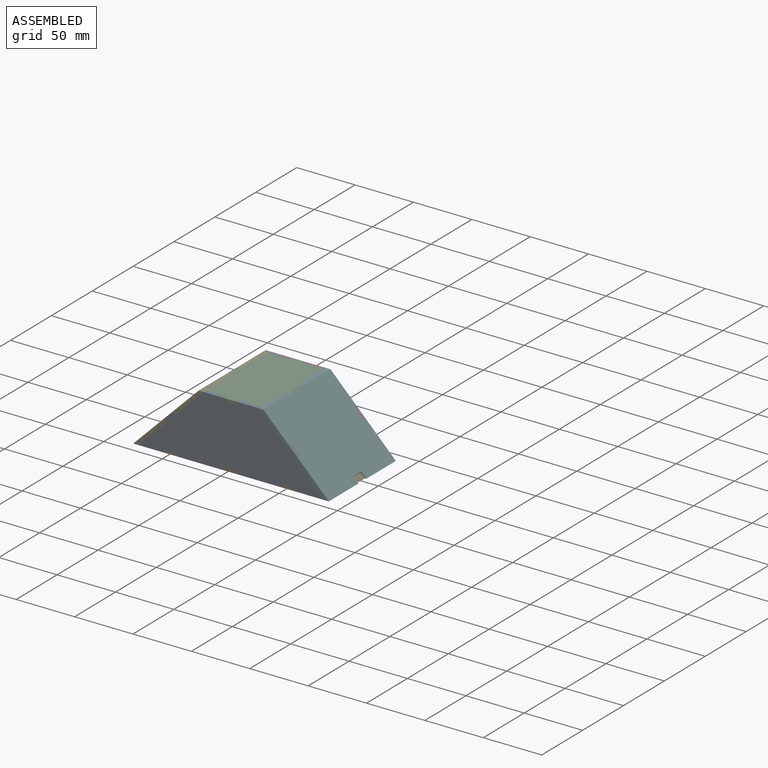
[diagram: assembled view]
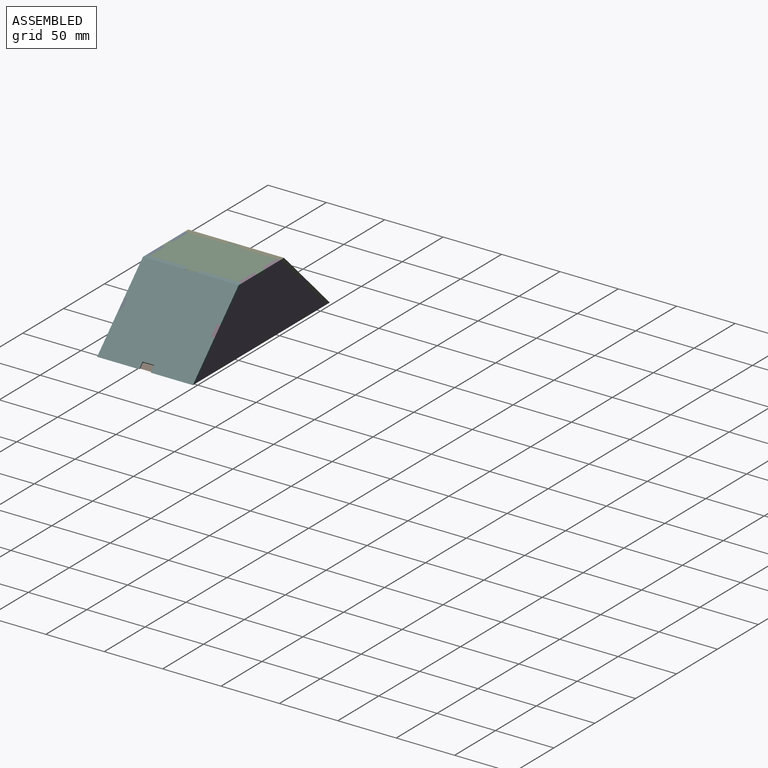
[diagram: assembled view, second angle]
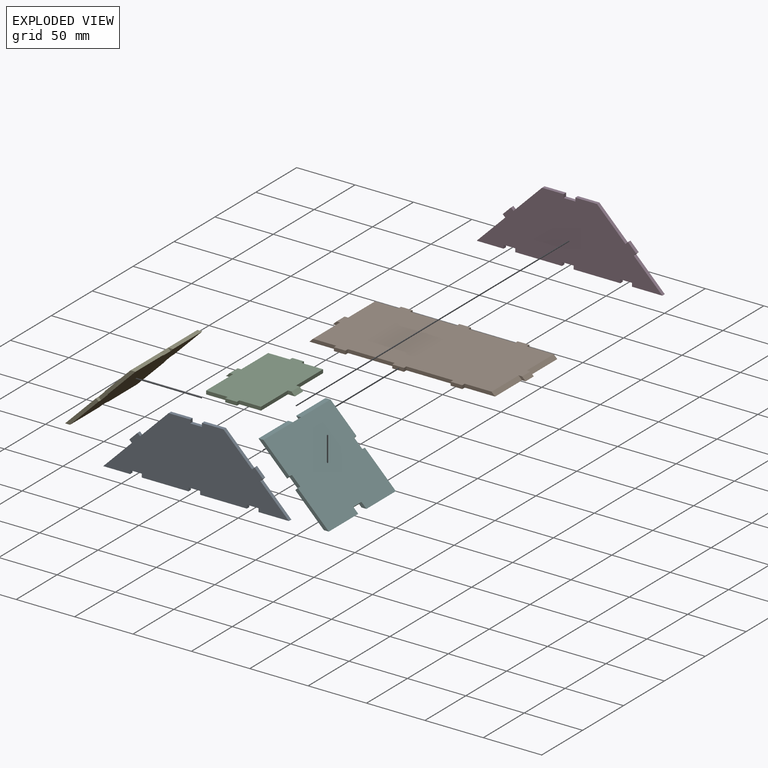
[diagram: exploded view]
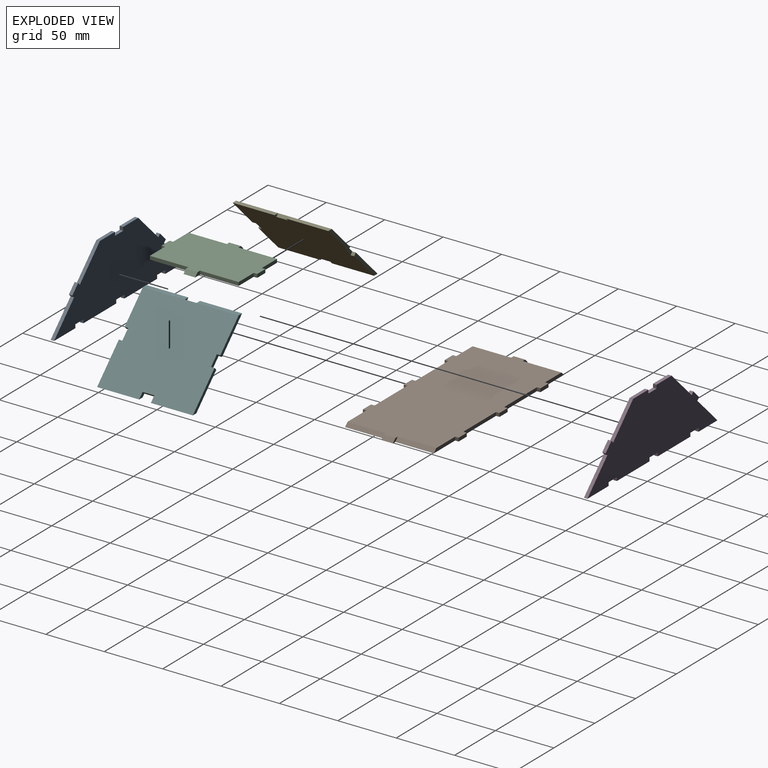
[diagram: exploded view, second angle]
ASSEMBLY  parts=6 mates=5
PART A: 30 faces, bbox 159x3x56 mm
  f0: plane 10x3mm, normal (0,0,-1), area 30mm2, adj f1,f27,f28,f29
  f1: plane 3x3mm, normal (-1,0,0), area 9mm2, adj f0,f2,f28,f29
  f2: plane 26x3mm, normal (0,0,-1), area 78mm2, adj f1,f3,f28,f29
  f3: plane 24.47x24.47mm, normal (0.71,0,0.71), area 103.8mm2, adj f2,f4,f28,f29
  f4: plane 3x2.12mm, normal (0.71,0,-0.71), area 9mm2, adj f3,f5,f28,f29
  f5: plane 7.07x7.07mm, normal (0.71,0,0.71), area 30mm2, adj f4,f6,f28,f29
  f6: plane 3x2.12mm, normal (-0.71,0,0.71), area 9mm2, adj f5,f7,f28,f29
  f7: plane 24.46x24.46mm, normal (0.71,0,0.71), area 103.8mm2, adj f6,f8,f28,f29
  f8: plane 18.5x3mm, normal (0,0,1), area 55.5mm2, adj f7,f9,f28,f29
  f9: plane 3x3mm, normal (-1,0,0), area 9mm2, adj f8,f10,f28,f29
  f10: plane 10x3mm, normal (0,0,1), area 30mm2, adj f9,f11,f28,f29
  f11: plane 3x3mm, normal (1,0,0), area 9mm2, adj f10,f12,f28,f29
  f12: plane 18.5x3mm, normal (0,0,1), area 55.5mm2, adj f11,f13,f28,f29
  f13: plane 24.47x24.47mm, normal (-0.71,0,0.71), area 103.8mm2, adj f12,f14,f28,f29
  f14: plane 3x2.12mm, normal (0.71,0,0.71), area 9mm2, adj f13,f15,f28,f29
  f15: plane 7.07x7.07mm, normal (-0.71,0,0.71), area 30mm2, adj f14,f16,f28,f29
  f16: plane 3x2.12mm, normal (-0.71,0,-0.71), area 9mm2, adj f15,f17,f28,f29
  f17: plane 24.46x24.46mm, normal (-0.71,0,0.71), area 103.8mm2, adj f16,f18,f28,f29
  f18: plane 23x3mm, normal (0,0,-1), area 69mm2, adj f17,f19,f28,f29
  f19: plane 3x3mm, normal (1,0,0), area 9mm2, adj f18,f20,f28,f29
  f20: plane 10x3mm, normal (0,0,-1), area 30mm2, adj f19,f21,f28,f29
  f21: plane 3x3mm, normal (-1,0,0), area 9mm2, adj f20,f22,f28,f29
  f22: plane 40x3mm, normal (0,0,-1), area 120mm2, adj f21,f23,f28,f29
  f23: plane 3x3mm, normal (1,0,0), area 9mm2, adj f22,f24,f28,f29
  f24: plane 10x3mm, normal (0,0,-1), area 30mm2, adj f23,f25,f28,f29
  f25: plane 3x3mm, normal (-1,0,0), area 9mm2, adj f24,f26,f28,f29
  f26: plane 40x3mm, normal (0,0,-1), area 120mm2, adj f25,f27,f28,f29
  f27: plane 3x3mm, normal (1,0,0), area 9mm2, adj f0,f26,f28,f29
  f28: plane 159x56mm, normal (0,-1,0), area 5708mm2, adj f0,f1,f2,f3,f4,f5,f6,f7
  f29: plane 159x56mm, normal (0,1,0), area 5708mm2, adj f0,f1,f2,f3,f4,f5,f6,f7
PART B: 38 faces, bbox 165x3x82 mm
  f0: plane 6x3mm, normal (0,0,1), area 9mm2, adj f30,f31,f32,f33
  f1: plane 26x3mm, normal (0,0,1), area 73.5mm2, adj f2,f30,f31,f32
  f2: plane 3x3mm, normal (1,0,0), area 9mm2, adj f1,f3,f30,f31
  f3: plane 10x3mm, normal (0,0,1), area 30mm2, adj f2,f4,f30,f31
  f4: plane 3x3mm, normal (-1,0,0), area 9mm2, adj f3,f5,f30,f31
  f5: plane 40x3mm, normal (0,0,1), area 120mm2, adj f4,f6,f30,f31
  f6: plane 3x3mm, normal (1,0,0), area 9mm2, adj f5,f7,f30,f31
  f7: plane 10x3mm, normal (0,0,1), area 30mm2, adj f6,f8,f30,f31
  f8: plane 3x3mm, normal (-1,0,0), area 9mm2, adj f7,f9,f30,f31
  f9: plane 40x3mm, normal (0,0,1), area 120mm2, adj f8,f10,f30,f31
  f10: plane 3x3mm, normal (1,0,0), area 9mm2, adj f9,f11,f30,f31
  f11: plane 10x3mm, normal (0,0,1), area 30mm2, adj f10,f12,f30,f31
  f12: plane 3x3mm, normal (-1,0,0), area 9mm2, adj f11,f13,f30,f31
  f13: plane 23x3mm, normal (0,0,1), area 64.5mm2, adj f12,f30,f31,f37
  f14: plane 6x3mm, normal (0,0,1), area 9mm2, adj f30,f31,f36,f37
  f15: plane 6x3mm, normal (0,0,-1), area 9mm2, adj f30,f31,f35,f36
  f16: plane 23x3mm, normal (0,0,-1), area 64.5mm2, adj f17,f30,f31,f35
  f17: plane 3x3mm, normal (-1,0,0), area 9mm2, adj f16,f18,f30,f31
  f18: plane 10x3mm, normal (0,0,-1), area 30mm2, adj f17,f19,f30,f31
  f19: plane 3x3mm, normal (1,0,0), area 9mm2, adj f18,f20,f30,f31
  f20: plane 40x3mm, normal (0,0,-1), area 120mm2, adj f19,f21,f30,f31
  f21: plane 3x3mm, normal (-1,0,0), area 9mm2, adj f20,f22,f30,f31
  f22: plane 10x3mm, normal (0,0,-1), area 30mm2, adj f21,f23,f30,f31
  f23: plane 3x3mm, normal (1,0,0), area 9mm2, adj f22,f24,f30,f31
  f24: plane 40x3mm, normal (0,0,-1), area 120mm2, adj f23,f25,f30,f31
  f25: plane 3x3mm, normal (-1,0,0), area 9mm2, adj f24,f26,f30,f31
  f26: plane 10x3mm, normal (0,0,-1), area 30mm2, adj f25,f27,f30,f31
  f27: plane 3x3mm, normal (1,0,0), area 9mm2, adj f26,f28,f30,f31
  f28: plane 26x3mm, normal (0,0,-1), area 73.5mm2, adj f27,f30,f31,f34
  f29: plane 6x3mm, normal (0,0,-1), area 9mm2, adj f30,f31,f33,f34
  f30: plane 159x82mm, normal (0,-1,0), area 11868mm2, adj f0,f1,f2,f3,f4,f5,f6,f7
  f31: plane 165x82mm, normal (0,1,0), area 12324mm2, adj f0,f1,f2,f3,f4,f5,f6,f7
  f32: plane 33x3mm, normal (0.71,-0.71,0), area 140mm2, adj f0,f1,f30,f31
  f33: plane 10x3mm, normal (0.71,-0.71,0), area 42.4mm2, adj f0,f29,f30,f31
  f34: plane 33x3mm, normal (0.71,-0.71,0), area 140mm2, adj f28,f29,f30,f31
  f35: plane 33x3mm, normal (-0.71,-0.71,0), area 140mm2, adj f15,f16,f30,f31
  f36: plane 10x3mm, normal (-0.71,-0.71,0), area 42.4mm2, adj f14,f15,f30,f31
  f37: plane 33x3mm, normal (-0.71,-0.71,0), area 140mm2, adj f13,f14,f30,f31
PART C: 22 faces, bbox 59x3x82 mm
  f0: plane 6x3mm, normal (0,0,1), area 13.5mm2, adj f1,f18,f19,f21
  f1: plane 33x3mm, normal (1,0,0), area 99mm2, adj f0,f2,f18,f19
  f2: plane 18.5x3mm, normal (0,0,1), area 55.5mm2, adj f1,f3,f18,f19
  f3: plane 3x3mm, normal (1,0,0), area 9mm2, adj f2,f4,f18,f19
  f4: plane 10x3mm, normal (0,0,1), area 30mm2, adj f3,f5,f18,f19
  f5: plane 3x3mm, normal (-1,0,0), area 9mm2, adj f4,f6,f18,f19
  f6: plane 18.5x3mm, normal (0,0,1), area 55.5mm2, adj f5,f7,f18,f19
  f7: plane 33x3mm, normal (-1,0,0), area 99mm2, adj f6,f8,f18,f19
  f8: plane 6x3mm, normal (0,0,1), area 13.5mm2, adj f7,f18,f19,f20
  f9: plane 6x3mm, normal (0,0,-1), area 13.5mm2, adj f10,f18,f19,f20
  f10: plane 33x3mm, normal (-1,0,0), area 99mm2, adj f9,f11,f18,f19
  f11: plane 18.5x3mm, normal (0,0,-1), area 55.5mm2, adj f10,f12,f18,f19
  f12: plane 3x3mm, normal (-1,0,0), area 9mm2, adj f11,f13,f18,f19
  f13: plane 10x3mm, normal (0,0,-1), area 30mm2, adj f12,f14,f18,f19
  f14: plane 3x3mm, normal (1,0,0), area 9mm2, adj f13,f15,f18,f19
  f15: plane 18.5x3mm, normal (0,0,-1), area 55.5mm2, adj f14,f16,f18,f19
  f16: plane 33x3mm, normal (1,0,0), area 99mm2, adj f15,f17,f18,f19
  f17: plane 6x3mm, normal (0,0,-1), area 13.5mm2, adj f16,f18,f19,f21
  f18: plane 82x53mm, normal (0,-1,0), area 3692mm2, adj f0,f1,f2,f3,f4,f5,f6,f7
  f19: plane 82x59mm, normal (0,1,0), area 3752mm2, adj f0,f1,f2,f3,f4,f5,f6,f7
  f20: plane 10x3mm, normal (-0.71,-0.71,0), area 42.4mm2, adj f8,f9,f18,f19
  f21: plane 10x3mm, normal (0.71,-0.71,0), area 42.4mm2, adj f0,f17,f18,f19
PART D: same geometry as A
PART E: 22 faces, bbox 82x3x82.2 mm
  f0: plane 34.59x3mm, normal (1,0,0), area 99.3mm2, adj f1,f5,f15,f19
  f1: plane 82x79.18mm, normal (0,-1,0), area 6372.8mm2, adj f0,f2,f3,f4,f6,f9,f10,f11
  f2: plane 6x3mm, normal (1,0,0), area 13.5mm2, adj f1,f5,f16,f21
  f3: plane 10x3mm, normal (1,0,0), area 30mm2, adj f1,f5,f13,f15
  f4: plane 10x3mm, normal (-1,0,0), area 30mm2, adj f1,f5,f12,f14
  f5: plane 82x79.18mm, normal (0,1,0), area 6372.8mm2, adj f0,f2,f3,f4,f6,f7,f8,f9
  f6: plane 6x3mm, normal (-1,0,0), area 13.5mm2, adj f1,f5,f16,f20
  f7: plane 3x3mm, normal (1,0,0), area 4.5mm2, adj f5,f17,f18
  f8: plane 3x3mm, normal (-1,0,0), area 4.5mm2, adj f5,f17,f19
  f9: plane 34.59x3mm, normal (-1,0,0), area 99.3mm2, adj f1,f5,f14,f18
  f10: plane 37.59x3mm, normal (1,0,0), area 108.3mm2, adj f1,f5,f13,f20
  f11: plane 37.59x3mm, normal (-1,0,0), area 108.3mm2, adj f1,f5,f12,f21
  f12: plane 3x3mm, normal (0,0,-1), area 9mm2, adj f1,f4,f5,f11
  f13: plane 3x3mm, normal (0,0,-1), area 9mm2, adj f1,f3,f5,f10
  f14: plane 3x3mm, normal (0,0,1), area 9mm2, adj f1,f4,f5,f9
  f15: plane 3x3mm, normal (0,0,1), area 9mm2, adj f0,f1,f3,f5
  f16: plane 10x3mm, normal (0,0,1), area 30mm2, adj f1,f2,f5,f6
  f17: plane 10x3mm, normal (0,0,-1), area 30mm2, adj f1,f5,f7,f8
  f18: plane 36x3mm, normal (0,-0.71,-0.71), area 152.7mm2, adj f1,f5,f7,f9
  f19: plane 36x3mm, normal (0,-0.71,-0.71), area 152.7mm2, adj f0,f1,f5,f8
  f20: plane 36x3mm, normal (0,0.71,0.71), area 152.7mm2, adj f1,f5,f6,f10
  f21: plane 36x3mm, normal (0,0.71,0.71), area 152.7mm2, adj f1,f2,f5,f11
PART F: same geometry as E
PLACE A rot(axis=(-1,0,0),0deg) t=(-17.61,-51.89,20.92)mm
PLACE B rot(axis=(-1,0,0),90deg) t=(-17.61,-13.89,-7.08)mm fixed
PLACE C rot(axis=(0,-0.71,0.71),180deg) t=(-17.61,-13.89,45.92)mm
PLACE D rot(axis=(-1,0,0),0deg) t=(-17.61,27.11,20.92)mm
PLACE E rot(axis=(-0.68,-0.68,0.28),148.6deg) t=(-67,-13.89,23.04)mm
PLACE F rot(axis=(-0.68,0.68,-0.28),148.6deg) t=(31.76,-13.89,23.05)mm
MATE fastened D.f28 <-> B.f9  axis (0,-1,0) through (-44.11,24.11,-7.08)mm
MATE fastened B.f20 <-> A.f29  axis (0,-1,0) through (-44.11,-51.89,-7.08)mm
MATE fastened F.f14 <-> D.f6  axis (0.71,0,-0.71) through (31.41,27.11,25.52)mm
MATE fastened C.f4 <-> A.f28  axis (0,-1,0) through (-17.61,-54.89,45.92)mm
MATE fastened E.f14 <-> A.f14  axis (-0.71,0,-0.71) through (-66.64,-54.89,25.51)mm
